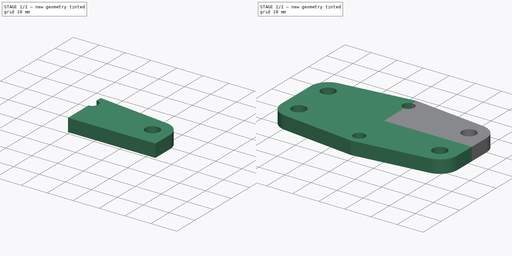
[diagram: build sequence overview — one tinted view per stage of 2, left to right]
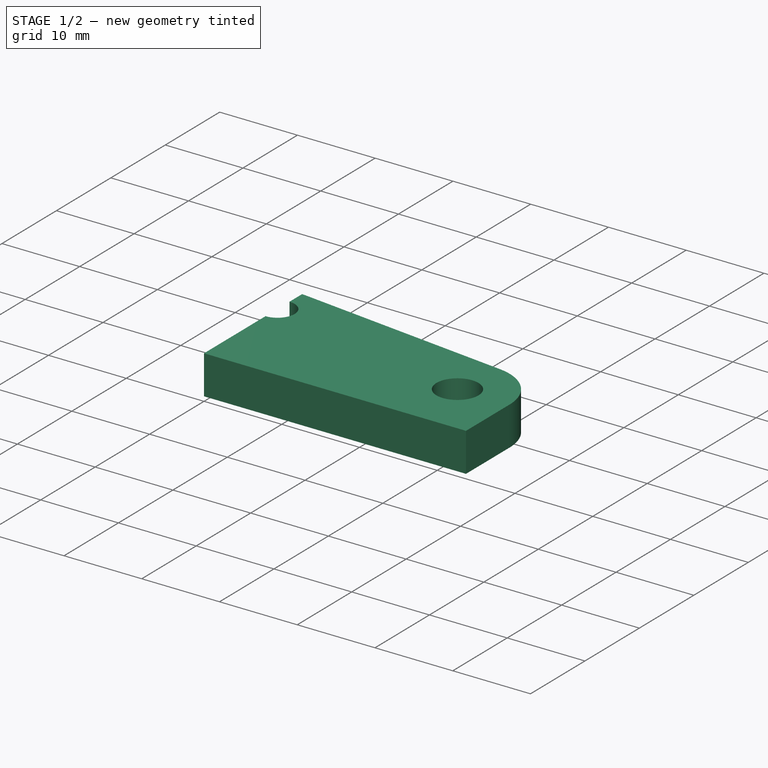
[diagram: stage 1 of 2 — iso view after this stage's code; geometry added in this stage tinted green]
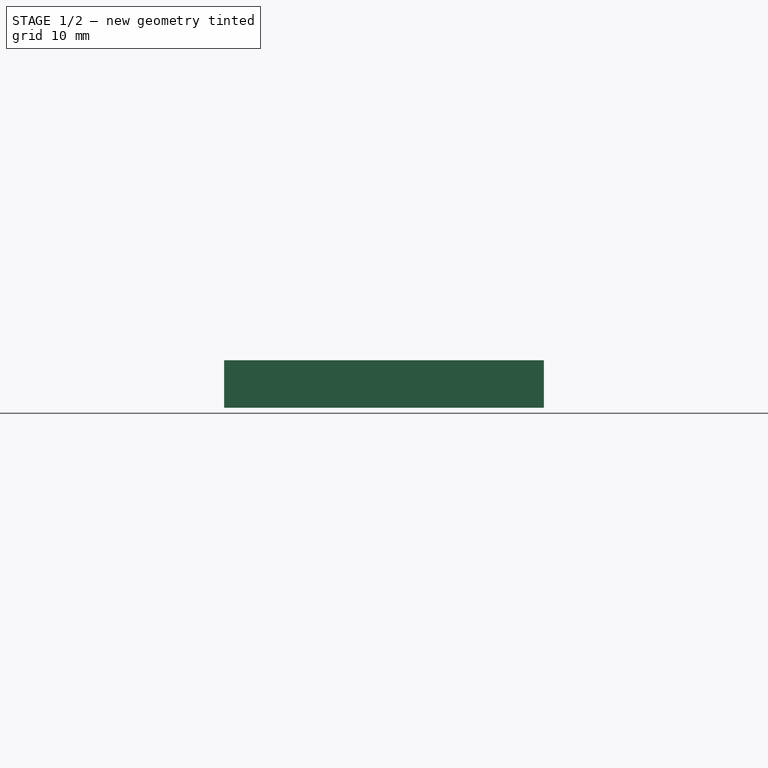
[diagram: stage 1 of 2 — front view after this stage's code; geometry added in this stage tinted green]
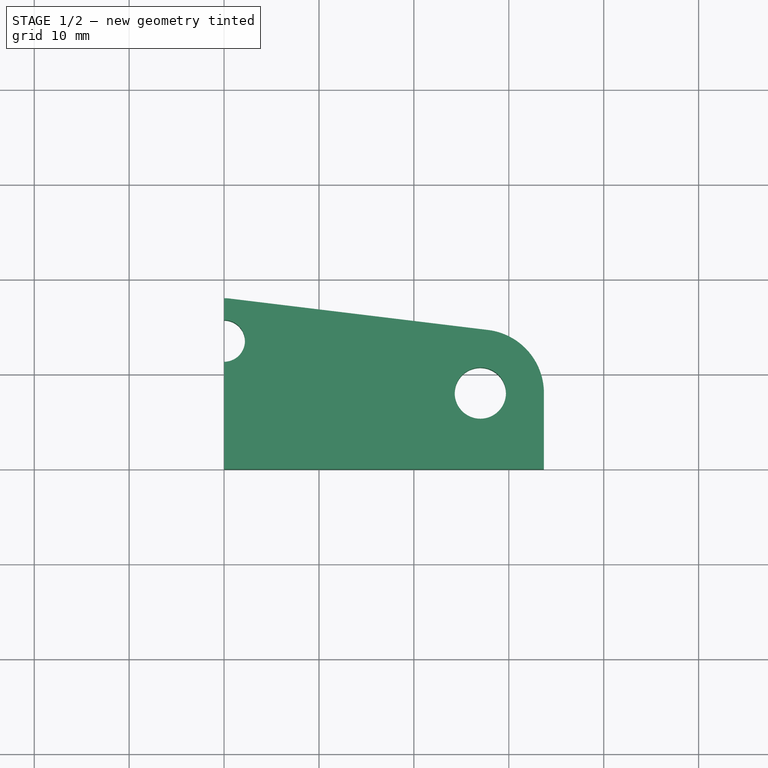
[diagram: stage 1 of 2 — top view after this stage's code; geometry added in this stage tinted green]
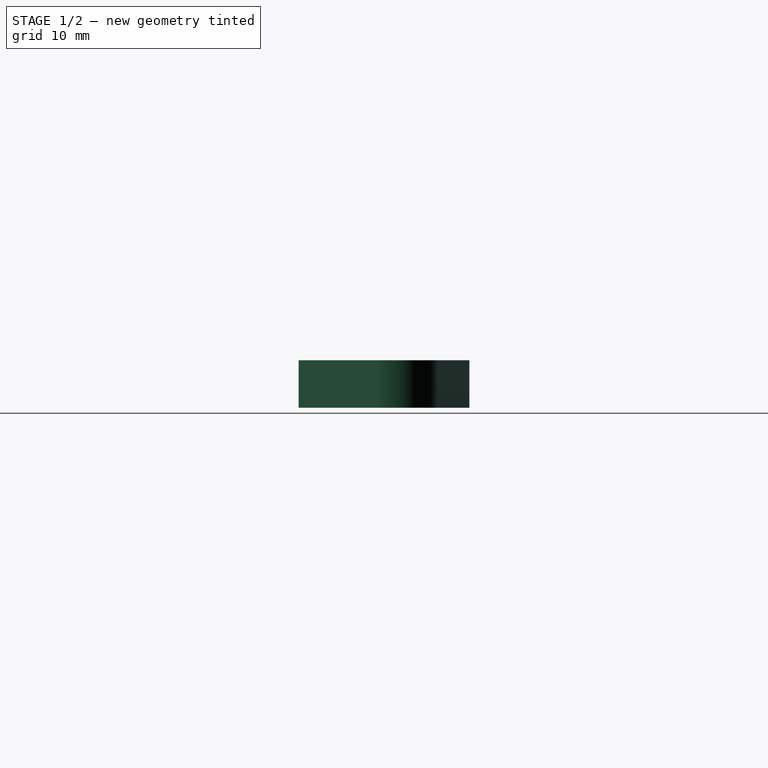
[diagram: stage 1 of 2 — right view after this stage's code; geometry added in this stage tinted green]
FCSTD DOCUMENT  (FreeCAD 0.19R24291 (Git))
Label: соединитель пневмоцилиндров
License: All rights reserved
LicenseURL: http://en.wikipedia.org/wiki/All_rights_reserved
objects: Sketcher::SketchObject×4, PartDesign::Mirrored×2, PartDesign::Pad×1, PartDesign::Pocket×1, PartDesign::MultiTransform×1, PartDesign::Body×1
note: 12 computed .brp shape members not serialized (recipe doc carries the construction recipe); baked Part::Feature solids carry a one-line shape summary decoded from their .brp

FEATURE [Sketcher::SketchObject] Sketch
  FullyConstrained = true
  MapMode = 5
  Support = -> [XY_Plane]
  sketch-geometry (7):
    g0: LineSegment StartX=-1.1e-14 StartY=0 StartZ=0 EndX=33.7 EndY=0 EndZ=0
    g1: LineSegment StartX=33.7 StartY=0 StartZ=0 EndX=33.7 EndY=8 EndZ=0
    g2: LineSegment StartX=-1.1e-14 StartY=9 StartZ=0 EndX=-1.1e-14 EndY=0 EndZ=0
    g3: ArcOfCircle CenterX=27 CenterY=8 CenterZ=0 NormalX=0 NormalY=0 NormalZ=1 AngleXU=0 Radius=6.7 StartAngle=0 EndAngle=1.98691
    g4: Circle CenterX=27 CenterY=8 CenterZ=0 NormalX=0 NormalY=0 NormalZ=1 AngleXU=0 Radius=2.7
    g5: ArcOfCircle CenterX=0 CenterY=69.0974 CenterZ=0 NormalX=0 NormalY=0 NormalZ=1 AngleXU=0 Radius=60.0974 StartAngle=4.71239 EndAngle=5.1285
    g6: ArcOfCircle CenterX=0 CenterY=13.5 CenterZ=0 NormalX=0 NormalY=0 NormalZ=1 AngleXU=0 Radius=2.2 StartAngle=4.71239 EndAngle=7.85398
  constraints (22):
    c: Coincident(g0,g1)
    c: Coincident(g2,g0)
    c: Horizontal(g0)
    c: Vertical(g1)
    c: Vertical(g2)
    c: Coincident(g0,g-1)
    c: Tangent(g1,g3) = -1.5708
    c: Radius(g3) = 6.7
    c: DistanceX(g4) = 27
    c: DistanceY(g4) = 8
    c: Diameter(g4) = 5.4
    c: Coincident(g3,g4)
    c: PointOnObject(g5,g-2)
    c: Coincident(g5,g3)
    c: Coincident(g5,g2)
    c: Tangent(g3,g5)
    c: PointOnObject(g6,g-2)
    c: PointOnObject(g6,g-2)
    c: PointOnObject(g6,g-2)
    c: Diameter(g6) = 4.4
    c: Distance(g0,g6) = 13.5
    c: Distance(g2,g6) = 4.5
FEATURE [Sketcher::SketchObject] Sketch001
  FullyConstrained = true
  MapMode = 5
  Support = -> [XY_Plane]
  expr: Constraints[33] = Sketch.Constraints[21]
  expr: Constraints[20] = Sketch.Constraints[8]
  expr: Constraints[31] = Sketch.Constraints[19]
  expr: Constraints[21] = Sketch.Constraints[9]
  expr: Constraints[19] = Sketch.Constraints[7]
  expr: Constraints[32] = Sketch.Constraints[20]
  expr: Constraints[22] = Sketch.Constraints[10]
  sketch-geometry (12):
    g0: LineSegment StartX=0 StartY=0 StartZ=0 EndX=3e-16 EndY=18 EndZ=0
    g1: LineSegment StartX=0.543295 StartY=17.9671 StartZ=0 EndX=27.8089 EndY=14.651 EndZ=0
    g2: ArcOfCircle CenterX=0 CenterY=13.5 CenterZ=0 NormalX=0 NormalY=0 NormalZ=1 AngleXU=0 Radius=2.2 StartAngle=4.71239 EndAngle=7.85398
    g3: ArcOfCircle CenterX=0 CenterY=13.5 CenterZ=0 NormalX=0 NormalY=0 NormalZ=1 AngleXU=0 Radius=4.5 StartAngle=1.44977 EndAngle=1.5708
    g4: LineSegment StartX=-1.1e-14 StartY=0 StartZ=0 EndX=33.7 EndY=0 EndZ=0
    g5: LineSegment StartX=33.7 StartY=0 StartZ=0 EndX=33.7 EndY=8 EndZ=0
    g6: LineSegment StartX=-1.1e-14 StartY=9 StartZ=0 EndX=-1.1e-14 EndY=0 EndZ=0
    g7: ArcOfCircle CenterX=27 CenterY=8 CenterZ=0 NormalX=0 NormalY=0 NormalZ=1 AngleXU=0 Radius=6.7 StartAngle=1e-16 EndAngle=1.98691
    g8: Circle CenterX=27 CenterY=8 CenterZ=0 NormalX=0 NormalY=0 NormalZ=1 AngleXU=0 Radius=2.7
    g9: ArcOfCircle CenterX=0 CenterY=69.0974 CenterZ=0 NormalX=0 NormalY=0 NormalZ=1 AngleXU=0 Radius=60.0974 StartAngle=4.71239 EndAngle=5.1285
    g10: ArcOfCircle CenterX=0 CenterY=13.5 CenterZ=0 NormalX=0 NormalY=0 NormalZ=1 AngleXU=0 Radius=2.2 StartAngle=4.71239 EndAngle=7.85398
    g11: ArcOfCircle CenterX=27 CenterY=8 CenterZ=0 NormalX=0 NormalY=0 NormalZ=1 AngleXU=0 Radius=6.7 StartAngle=0 EndAngle=1.44977
  constraints (38):
    c: Coincident(g0,g-1)
    c: PointOnObject(g2,g0)
    c: PointOnObject(g2,g0)
    c: PointOnObject(g2,g0)
    c: Distance(g2,g0) = 13.5
    c: Diameter(g2) = 4.4
    c: Coincident(g3,g2)
    c: Coincident(g1,g3)
    c: Tangent(g1,g3)
    c: Coincident(g0,g3)
    c: PointOnObject(g0,g-2)
    c: Diameter(g3) = 9
    c: Coincident(g4,g5)
    c: Coincident(g6,g4)
    c: Horizontal(g4)
    c: Vertical(g5)
    c: Vertical(g6)
    c: Coincident(g4,g-1)
    c: Tangent(g5,g7) = -1.5708
    c: Radius(g7) = 6.7
    c: DistanceX(g8) = 27
    c: DistanceY(g8) = 8
    c: Diameter(g8) = 5.4
    c: Coincident(g7,g8)
    c: PointOnObject(g9,g-2)
    c: Coincident(g9,g7)
    c: Coincident(g9,g6)
    c: Tangent(g7,g9)
    c: PointOnObject(g10,g-2)
    c: PointOnObject(g10,g-2)
    c: PointOnObject(g10,g-2)
    c: Diameter(g10) = 4.4
    c: Distance(g4,g10) = 13.5
    c: Distance(g6,g10) = 4.5
    c: Coincident(g11,g7)
    c: Coincident(g11,g5)
    c: Coincident(g11,g1)
    c: Tangent(g11,g1)
FEATURE [PartDesign::Pad] Pad001
  Direction = (1,1,1)
  Length = 5
  Length2 = 100
  Profile = -> Sketch001
  Type = 0
FEATURE [Sketcher::SketchObject] Sketch002
  FullyConstrained = true
  MapMode = 5
  Support = -> [XY_Plane]
  expr: Constraints[22] = Sketch001.Constraints[22]
  expr: Constraints[31] = Sketch001.Constraints[31]
  expr: Constraints[21] = Sketch001.Constraints[21]
  expr: Constraints[33] = Sketch001.Constraints[33]
  expr: Constraints[20] = Sketch001.Constraints[20]
  expr: Constraints[19] = Sketch001.Constraints[19]
  expr: Constraints[11] = Sketch001.Constraints[11]
  expr: Constraints[5] = Sketch001.Constraints[5]
  expr: Constraints[32] = Sketch001.Constraints[32]
  expr: Constraints[4] = Sketch001.Constraints[4]
  sketch-geometry (13):
    g0: LineSegment StartX=0 StartY=0 StartZ=0 EndX=3e-16 EndY=18 EndZ=0
    g1: LineSegment StartX=0.543295 StartY=17.9671 StartZ=0 EndX=27.8089 EndY=14.651 EndZ=0
    g2: ArcOfCircle CenterX=0 CenterY=13.5 CenterZ=0 NormalX=0 NormalY=0 NormalZ=1 AngleXU=0 Radius=2.2 StartAngle=4.71239 EndAngle=7.85398
    g3: ArcOfCircle CenterX=0 CenterY=13.5 CenterZ=0 NormalX=0 NormalY=0 NormalZ=1 AngleXU=0 Radius=4.5 StartAngle=1.44977 EndAngle=1.5708
    g4: LineSegment StartX=-1.1e-14 StartY=0 StartZ=0 EndX=33.7 EndY=0 EndZ=0
    g5: LineSegment StartX=33.7 StartY=0 StartZ=0 EndX=33.7 EndY=8 EndZ=0
    g6: LineSegment StartX=-1.1e-14 StartY=9 StartZ=0 EndX=-1.1e-14 EndY=0 EndZ=0
    g7: ArcOfCircle CenterX=27 CenterY=8 CenterZ=0 NormalX=0 NormalY=0 NormalZ=1 AngleXU=0 Radius=6.7 StartAngle=1e-16 EndAngle=1.98691
    g8: Circle CenterX=27 CenterY=8 CenterZ=0 NormalX=0 NormalY=0 NormalZ=1 AngleXU=0 Radius=2.7
    g9: ArcOfCircle CenterX=0 CenterY=69.0974 CenterZ=0 NormalX=0 NormalY=0 NormalZ=1 AngleXU=0 Radius=60.0974 StartAngle=4.71239 EndAngle=5.1285
    g10: ArcOfCircle CenterX=0 CenterY=13.5 CenterZ=0 NormalX=0 NormalY=0 NormalZ=1 AngleXU=0 Radius=2.2 StartAngle=4.71239 EndAngle=7.85398
    g11: ArcOfCircle CenterX=27 CenterY=8 CenterZ=0 NormalX=0 NormalY=0 NormalZ=1 AngleXU=0 Radius=6.7 StartAngle=0 EndAngle=1.44977
    g12: LineSegment StartX=-4e-16 StartY=11.3 StartZ=0 EndX=7e-16 EndY=15.7 EndZ=0
  constraints (40):
    c: Coincident(g0,g-1)
    c: PointOnObject(g2,g0)
    c: PointOnObject(g2,g0)
    c: PointOnObject(g2,g0)
    c: Distance(g2,g0) = 13.5
    c: Diameter(g2) = 4.4
    c: Coincident(g3,g2)
    c: Coincident(g1,g3)
    c: Tangent(g1,g3)
    c: Coincident(g0,g3)
    c: PointOnObject(g0,g-2)
    c: Diameter(g3) = 9
    c: Coincident(g4,g5)
    c: Coincident(g6,g4)
    c: Horizontal(g4)
    c: Vertical(g5)
    c: Vertical(g6)
    c: Coincident(g4,g-1)
    c: Tangent(g5,g7) = -1.5708
    c: Radius(g7) = 6.7
    c: DistanceX(g8) = 27
    c: DistanceY(g8) = 8
    c: Diameter(g8) = 5.4
    c: Coincident(g7,g8)
    c: PointOnObject(g9,g-2)
    c: Coincident(g9,g7)
    c: Coincident(g9,g6)
    c: Tangent(g7,g9)
    c: PointOnObject(g10,g-2)
    c: PointOnObject(g10,g-2)
    c: PointOnObject(g10,g-2)
    c: Diameter(g10) = 4.4
    c: Distance(g4,g10) = 13.5
    c: Distance(g6,g10) = 4.5
    c: Coincident(g11,g7)
    c: Coincident(g11,g5)
    c: Coincident(g11,g1)
    c: Tangent(g11,g1)
    c: Coincident(g12,g2)
    c: Coincident(g12,g2)
FEATURE [PartDesign::Pocket] Pocket
  BaseFeature = -> Pad001
  Length = 5
  Length2 = 100
  Midplane = true
  Profile = -> Sketch002
  Type = 1
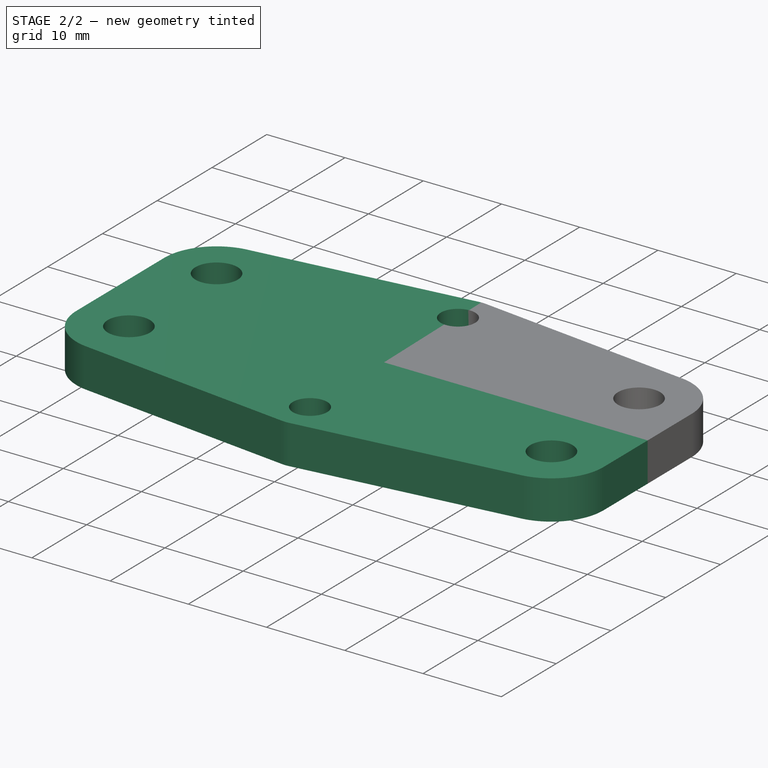
[diagram: stage 2 of 2 — iso view after this stage's code; geometry added in this stage tinted green]
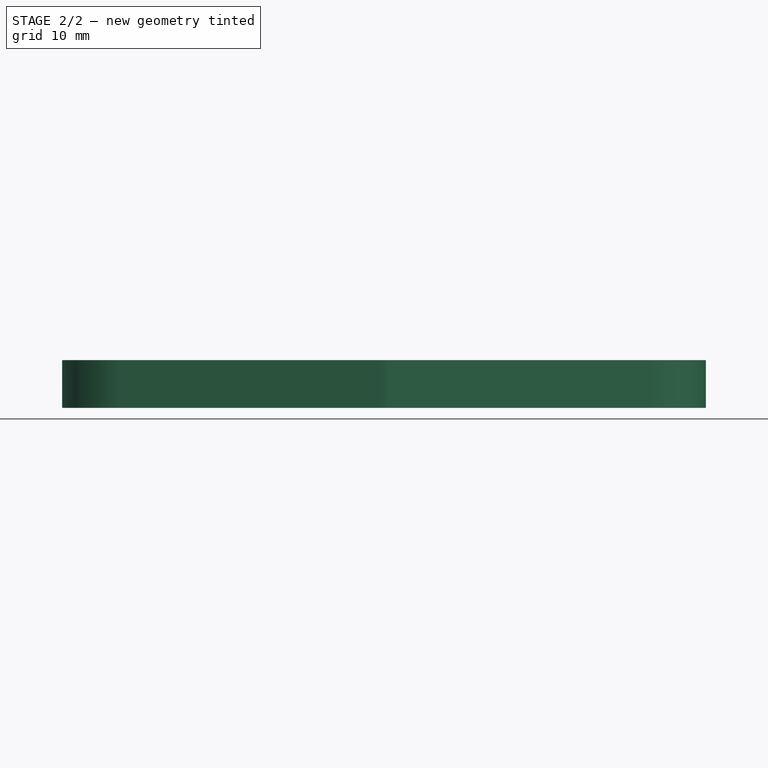
[diagram: stage 2 of 2 — front view after this stage's code; geometry added in this stage tinted green]
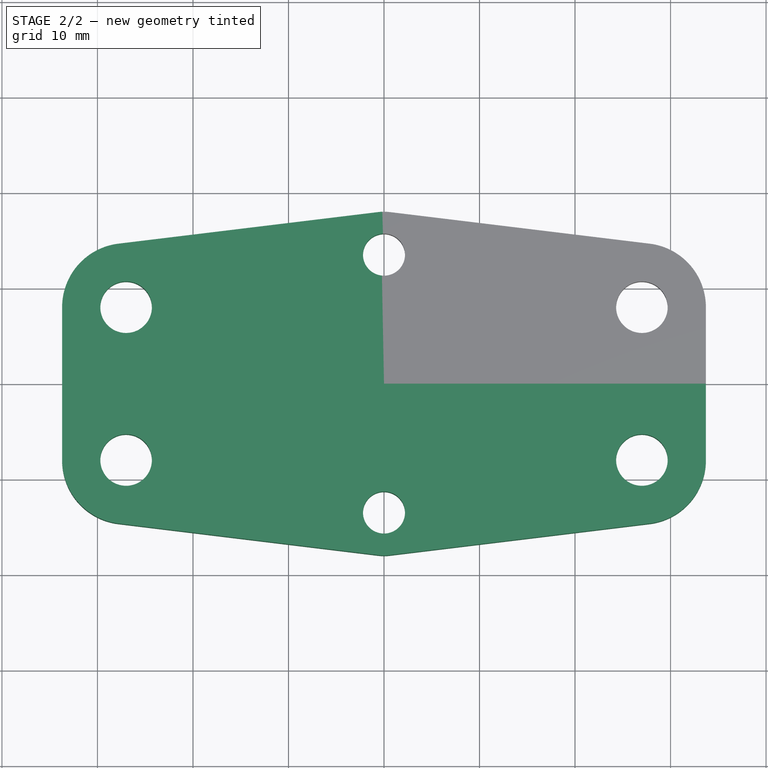
[diagram: stage 2 of 2 — top view after this stage's code; geometry added in this stage tinted green]
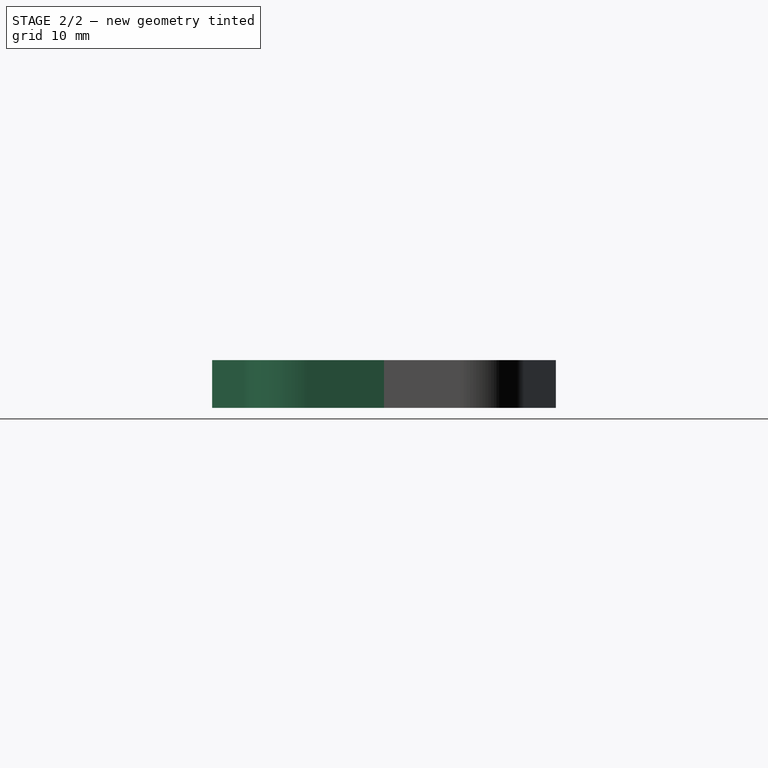
[diagram: stage 2 of 2 — right view after this stage's code; geometry added in this stage tinted green]
FEATURE [PartDesign::Mirrored] Mirrored
  MirrorPlane = -> Sketch [V_Axis]
FEATURE [PartDesign::Mirrored] Mirrored001
  MirrorPlane = -> Sketch [H_Axis]
FEATURE [PartDesign::MultiTransform] MultiTransform
  BaseFeature = -> Pocket
  Originals = -> [Pad001,Pocket]
  Transformations = -> [Mirrored,Mirrored001]
FEATURE [Sketcher::SketchObject] Sketch003
  FullyConstrained = true
  MapMode = 5
  Support = -> [XY_Plane]
  expr: Constraints[21] = Sketch.Constraints[21]
  expr: Constraints[20] = Sketch.Constraints[20]
  expr: Constraints[19] = 9
  expr: Constraints[10] = Sketch.Constraints[10]
  expr: Constraints[9] = Sketch.Constraints[9]
  expr: Constraints[8] = Sketch.Constraints[8]
  expr: Constraints[7] = Sketch.Constraints[7]
  sketch-geometry (8):
    g0: LineSegment StartX=0 StartY=0 StartZ=0 EndX=33.7 EndY=0 EndZ=0
    g1: LineSegment StartX=33.7 StartY=0 StartZ=0 EndX=33.7 EndY=8 EndZ=0
    g2: LineSegment StartX=0 StartY=9 StartZ=0 EndX=0 EndY=0 EndZ=0
    g3: ArcOfCircle CenterX=27 CenterY=8 CenterZ=0 NormalX=0 NormalY=0 NormalZ=1 AngleXU=0 Radius=6.7 StartAngle=0 EndAngle=1.98691
    g4: Circle CenterX=27 CenterY=8 CenterZ=0 NormalX=0 NormalY=0 NormalZ=1 AngleXU=0 Radius=2.7
    g5: ArcOfCircle CenterX=0 CenterY=69.0974 CenterZ=0 NormalX=0 NormalY=0 NormalZ=1 AngleXU=0 Radius=60.0974 StartAngle=4.71239 EndAngle=5.1285
    g6: ArcOfCircle CenterX=0 CenterY=13.5 CenterZ=0 NormalX=0 NormalY=0 NormalZ=1 AngleXU=0 Radius=4.5 StartAngle=4.71239 EndAngle=7.85398
    g7: LineSegment StartX=1.4e-15 StartY=18 StartZ=0 EndX=0 EndY=9 EndZ=0
  constraints (24):
    c: Coincident(g0,g1)
    c: Coincident(g2,g0)
    c: Horizontal(g0)
    c: Vertical(g1)
    c: Vertical(g2)
    c: Coincident(g0,g-1)
    c: Tangent(g1,g3) = -1.5708
    c: Radius(g3) = 6.7
    c: DistanceX(g4) = 27
    c: DistanceY(g4) = 8
    c: Diameter(g4) = 5.4
    c: Coincident(g3,g4)
    c: PointOnObject(g5,g-2)
    c: Coincident(g5,g3)
    c: Coincident(g5,g2)
    c: Tangent(g3,g5)
    c: PointOnObject(g6,g-2)
    c: PointOnObject(g6,g-2)
    c: PointOnObject(g6,g-2)
    c: Diameter(g6) = 9
    c: Distance(g0,g6) = 13.5
    c: Distance(g2,g6) = 4.5
    c: Coincident(g7,g6)
    c: Coincident(g7,g6)
FEATURE [PartDesign::Body] Body
  Group = -> [Sketch,Sketch001,Pad001,Sketch002,Pocket,MultiTransform,Mirrored,Mirrored001,Sketch003]
  Origin = -> Origin
  Tip = -> MultiTransform
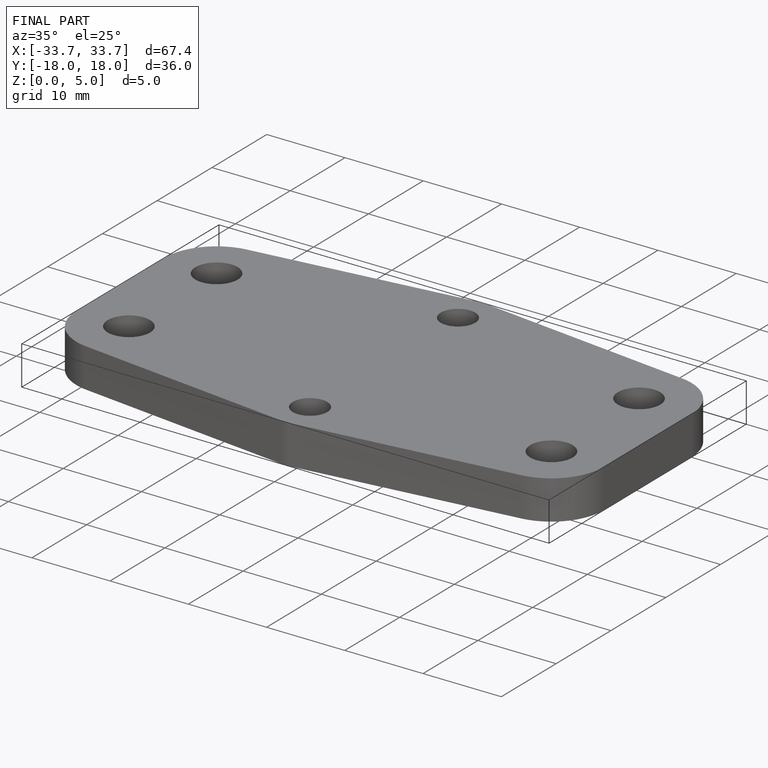
[diagram: finished part — iso view with bounding-box wireframe]
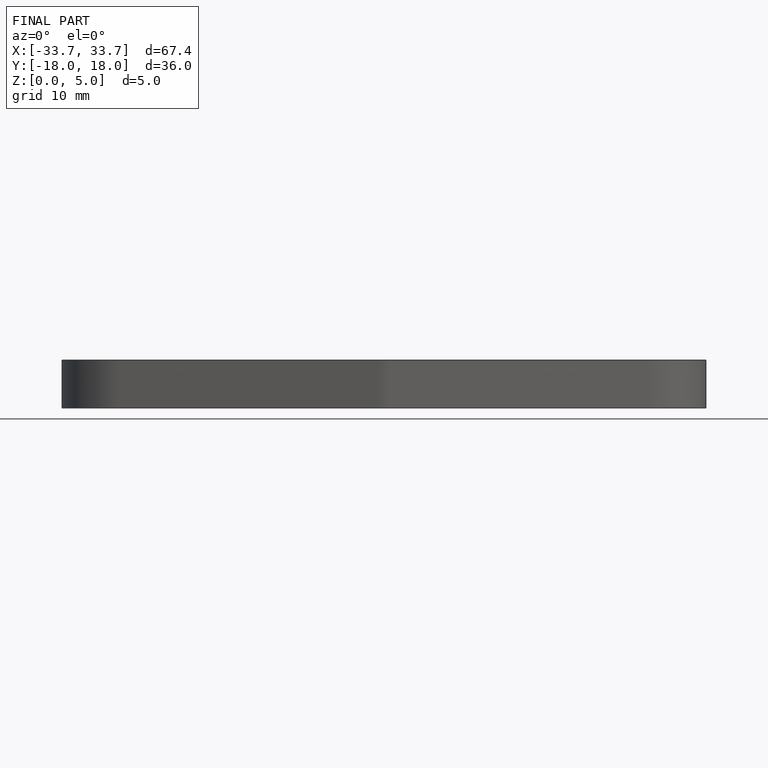
[diagram: finished part — front view with bounding-box wireframe]
